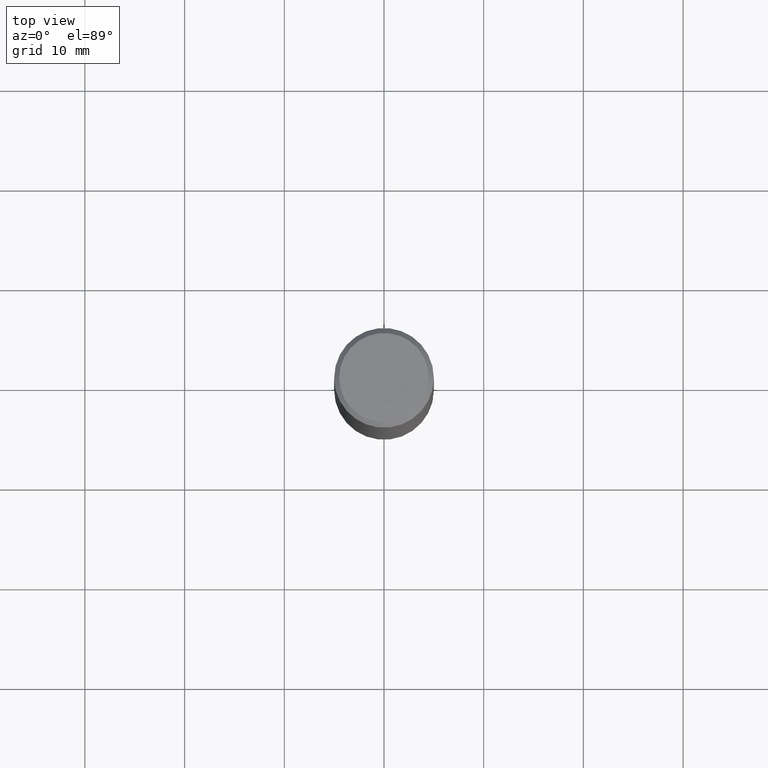
[diagram: clean part render]
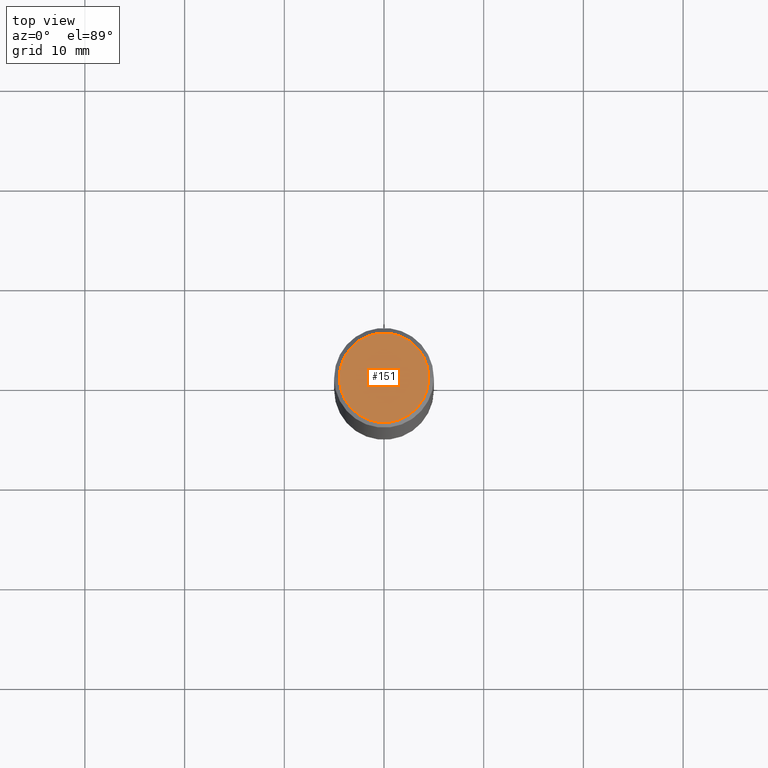
[diagram: same view with one face highlighted and labeled with its STEP entity id]
A machine part, top view. The second image highlights one B-rep face of the part: STEP entity #151.
In plain terms, the highlighted planar face has unit normal (0, -0, -1).
Its self-contained STEP definition (entity closure, byte-faithful):
#64 = DIRECTION ( 'NONE',  ( 2.438088387897960049E-29, -3.491481338843145188E-15, -1.000000000000000000 ) ) ;
#69 = FACE_OUTER_BOUND ( 'NONE', #97, .T. ) ;
#97 = EDGE_LOOP ( 'NONE', ( #283, #406 ) ) ;
#104 = EDGE_CURVE ( 'NONE', #281, #337, #167, .T. ) ;
#119 = AXIS2_PLACEMENT_3D ( 'NONE', #265, #394, #230 ) ;
#151 = ADVANCED_FACE ( 'NONE', ( #69 ), #192, .F. ) ;
#164 = DIRECTION ( 'NONE',  ( 1.000000000000000000, -6.982962677686267499E-15, 4.875932113059876327E-29 ) ) ;
#167 = CIRCLE ( 'NONE', #119, 0.1768500000000000627 ) ;
#181 = EDGE_CURVE ( 'NONE', #337, #281, #331, .T. ) ;
#192 = PLANE ( 'NONE',  #398 ) ;
#230 = DIRECTION ( 'NONE',  ( 1.000000000000000000, -6.982962677686267499E-15, 4.875932113059876327E-29 ) ) ;
#264 = DIRECTION ( 'NONE',  ( -1.000000000000000000, 6.982962677686265922E-15, -4.876176775795935793E-29 ) ) ;
#265 = CARTESIAN_POINT ( 'NONE',  ( -1.043851414335219820E-46, 1.490343170380447200E-32, 4.268512490100411279E-18 ) ) ;
#267 = CARTESIAN_POINT ( 'NONE',  ( 0.1768500000000000627, -1.316798864272042535E-15, 4.268512490109333727E-18 ) ) ;
#281 = VERTEX_POINT ( 'NONE', #267 ) ;
#283 = ORIENTED_EDGE ( 'NONE', *, *, #181, .T. ) ;
#316 = AXIS2_PLACEMENT_3D ( 'NONE', #393, #358, #164 ) ;
#331 = CIRCLE ( 'NONE', #316, 0.1768500000000000627 ) ;
#337 = VERTEX_POINT ( 'NONE', #367 ) ;
#349 = CARTESIAN_POINT ( 'NONE',  ( 1.234936949548816590E-15, 0.1768500000000000627, -6.153342185293602508E-16 ) ) ;
#358 = DIRECTION ( 'NONE',  ( -2.445468806185136597E-29, 3.491481338843145583E-15, 1.000000000000000000 ) ) ;
#367 = CARTESIAN_POINT ( 'NONE',  ( -0.1768500000000000627, 1.269851762937247844E-15, 4.268512490091652920E-18 ) ) ;
#393 = CARTESIAN_POINT ( 'NONE',  ( -1.043851414335219820E-46, 1.490343170380447200E-32, 4.268512490100411279E-18 ) ) ;
#394 = DIRECTION ( 'NONE',  ( -2.445468806185136597E-29, 3.491481338843145583E-15, 1.000000000000000000 ) ) ;
#398 = AXIS2_PLACEMENT_3D ( 'NONE', #349, #64, #264 ) ;
#406 = ORIENTED_EDGE ( 'NONE', *, *, #104, .T. ) ;